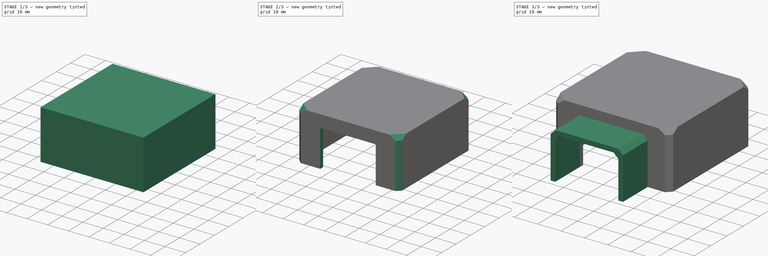
[diagram: build sequence overview — one tinted view per stage of 3, left to right]
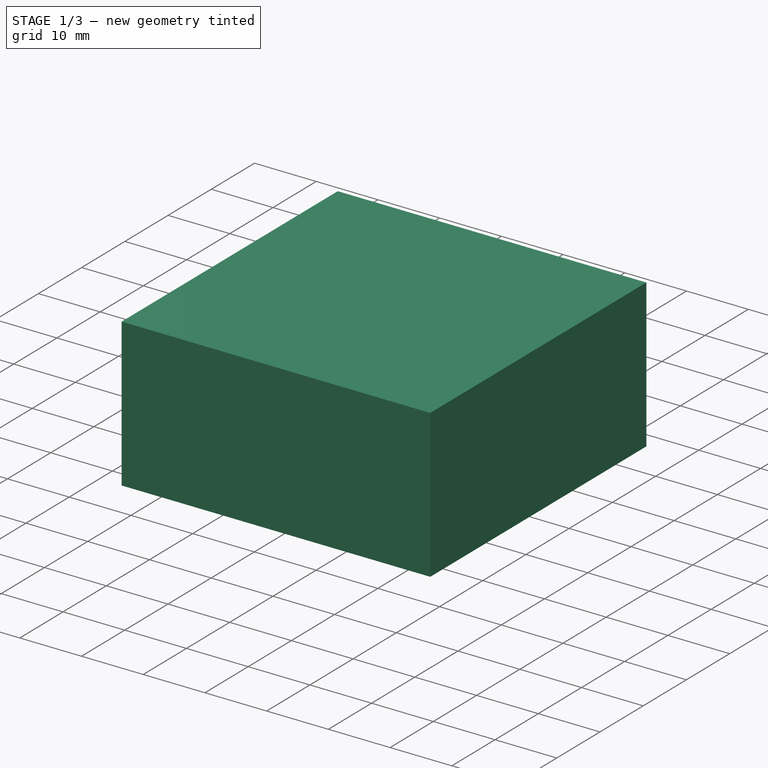
[diagram: stage 1 of 3 — iso view after this stage's code; geometry added in this stage tinted green]
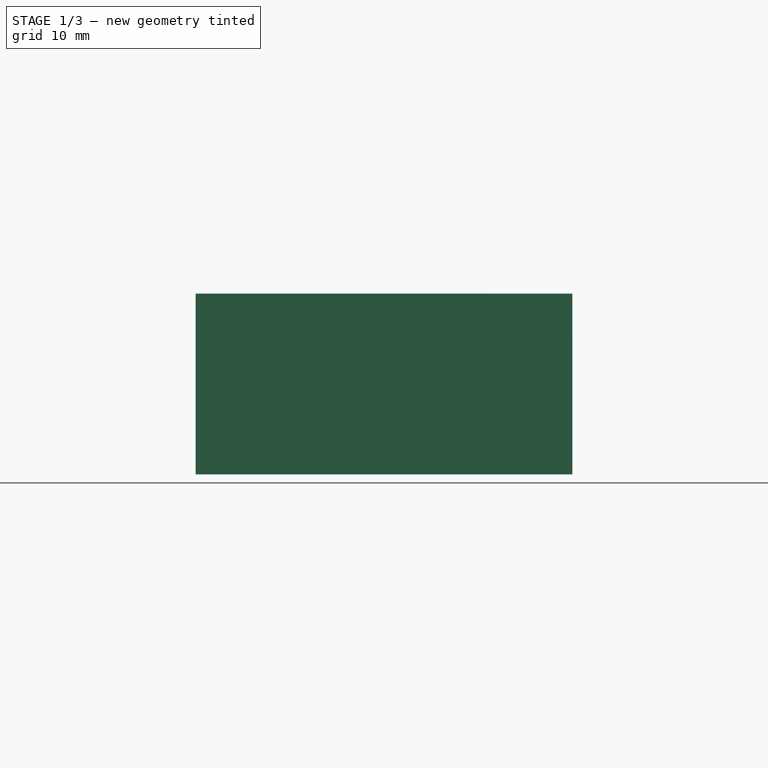
[diagram: stage 1 of 3 — front view after this stage's code; geometry added in this stage tinted green]
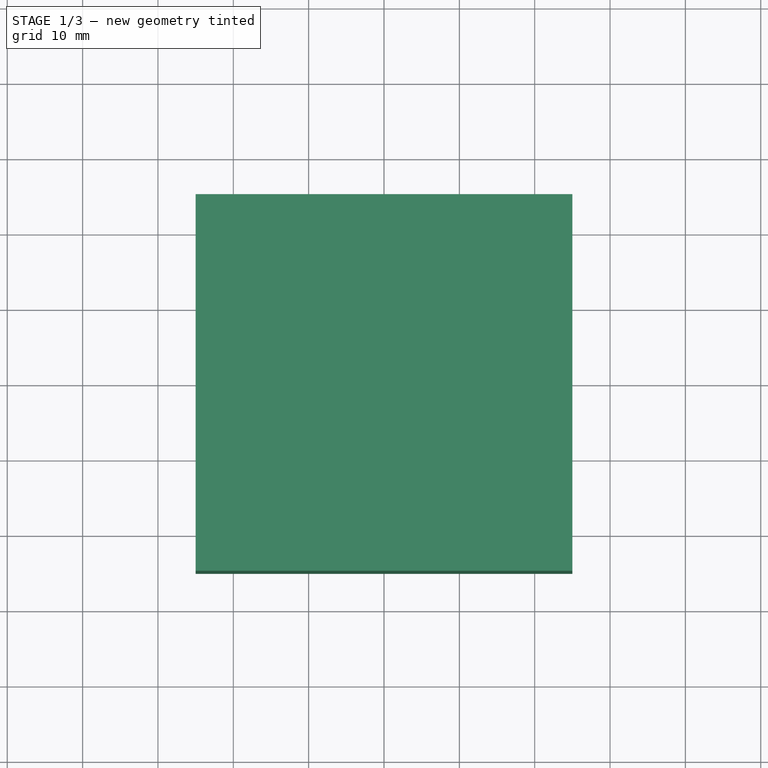
[diagram: stage 1 of 3 — top view after this stage's code; geometry added in this stage tinted green]
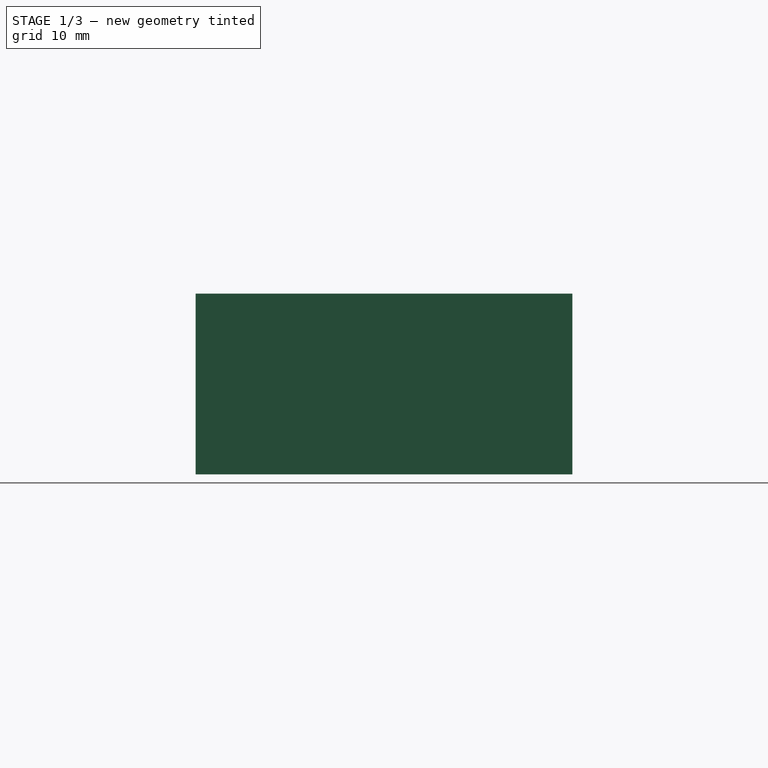
[diagram: stage 1 of 3 — right view after this stage's code; geometry added in this stage tinted green]
FCSTD DOCUMENT  (FreeCAD 0.18R16161 (Git))
Label: tuya-smart-switch-cover
License: All rights reserved
LicenseURL: http://en.wikipedia.org/wiki/All_rights_reserved
objects: Sketcher::SketchObject×4, PartDesign::Pad×3, PartDesign::Chamfer×3, PartDesign::Pocket×1, Spreadsheet::Sheet×1, PartDesign::Body×1
note: 16 computed .brp shape members not serialized (recipe doc carries the construction recipe); baked Part::Feature solids carry a one-line shape summary decoded from their .brp

FEATURE [Sketcher::SketchObject] Sketch
  MapMode = 5
  Support = -> [XY_Plane]
  expr: Constraints[19] = Parameters.SwitchHeight + 4mm
  expr: Constraints[18] = Parameters.SwitchWidth + 4mm
  expr: Constraints[6] = Parameters.SwitchWidth
  expr: Constraints[7] = Parameters.SwitchHeight
  sketch-geometry (8):
    g0: LineSegment StartX=-23 StartY=23 StartZ=0 EndX=23 EndY=23 EndZ=0
    g1: LineSegment StartX=23 StartY=23 StartZ=0 EndX=23 EndY=-23 EndZ=0
    g2: LineSegment StartX=23 StartY=-23 StartZ=0 EndX=-23 EndY=-23 EndZ=0
    g3: LineSegment StartX=-23 StartY=-23 StartZ=0 EndX=-23 EndY=23 EndZ=0
    g4: LineSegment StartX=-25 StartY=25 StartZ=0 EndX=25 EndY=25 EndZ=0
    g5: LineSegment StartX=25 StartY=25 StartZ=0 EndX=25 EndY=-25 EndZ=0
    g6: LineSegment StartX=25 StartY=-25 StartZ=0 EndX=-25 EndY=-25 EndZ=0
    g7: LineSegment StartX=-25 StartY=-25 StartZ=0 EndX=-25 EndY=25 EndZ=0
  constraints (20):
    c: Coincident(g0,g1)
    c: Coincident(g1,g2)
    c: Coincident(g2,g3)
    c: Coincident(g3,g0)
    c: Horizontal(g2)
    c: Vertical(g3)
    c: DistanceX(g0,g0) = 46
    c: DistanceY(g2,g0) = 46
    c: Symmetric(g0,g0,g-2)
    c: Symmetric(g0,g1,g-1)
    c: Coincident(g4,g5)
    c: Coincident(g5,g6)
    c: Coincident(g6,g7)
    c: Coincident(g7,g4)
    c: Horizontal(g6)
    c: Vertical(g7)
    c: Symmetric(g4,g4,g-2)
    c: Symmetric(g4,g5,g-1)
    c: DistanceX(g4,g4) = 50
    c: DistanceY(g5,g5) = 50
FEATURE [PartDesign::Pad] Pad
  Length = 20
  Length2 = 100
  Profile = -> Sketch
  Type = 0
FEATURE [Sketcher::SketchObject] Sketch001
  MapMode = 5
  Placement = pos=(0,0,20) rot=(0,0,1;0rad)
  Support = -> [Pad]
  expr: Constraints[8] = Parameters.SwitchHeight + 4mm
  expr: Constraints[9] = Parameters.SwitchWidth + 4mm
  sketch-geometry (4):
    g0: LineSegment StartX=-25 StartY=25 StartZ=0 EndX=25 EndY=25 EndZ=0
    g1: LineSegment StartX=25 StartY=25 StartZ=0 EndX=25 EndY=-25 EndZ=0
    g2: LineSegment StartX=25 StartY=-25 StartZ=0 EndX=-25 EndY=-25 EndZ=0
    g3: LineSegment StartX=-25 StartY=-25 StartZ=0 EndX=-25 EndY=25 EndZ=0
  constraints (10):
    c: Coincident(g0,g1)
    c: Coincident(g1,g2)
    c: Coincident(g2,g3)
    c: Coincident(g3,g0)
    c: Horizontal(g2)
    c: Vertical(g3)
    c: Symmetric(g0,g0,g-2)
    c: Symmetric(g1,g0,g-1)
    c: DistanceY(g1,g1) = 50
    c: DistanceX(g0,g0) = 50
FEATURE [PartDesign::Pad] Pad001
  BaseFeature = -> Pad
  Length = 4
  Length2 = 100
  Profile = -> Sketch001
  Type = 0
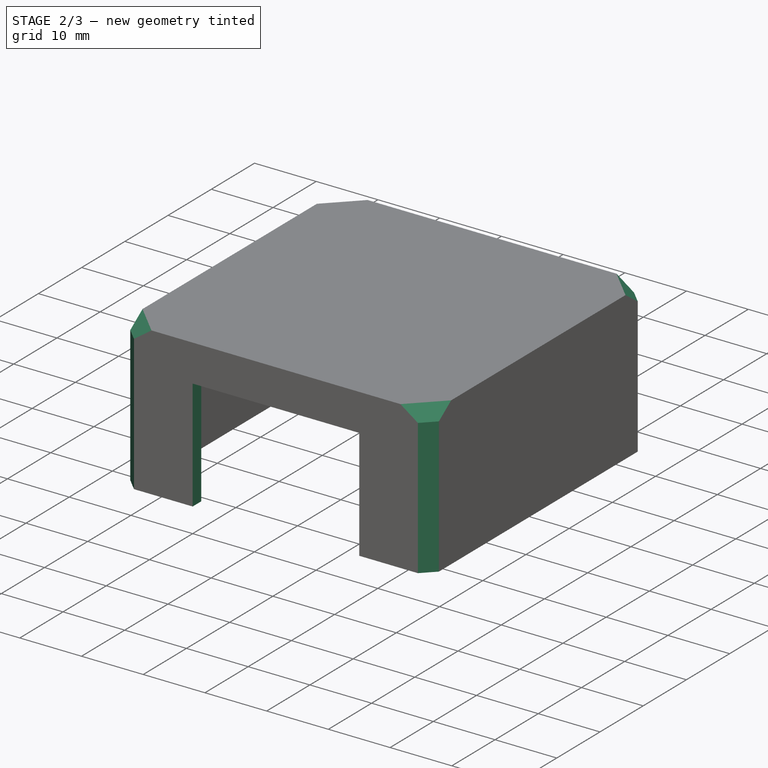
[diagram: stage 2 of 3 — iso view after this stage's code; geometry added in this stage tinted green]
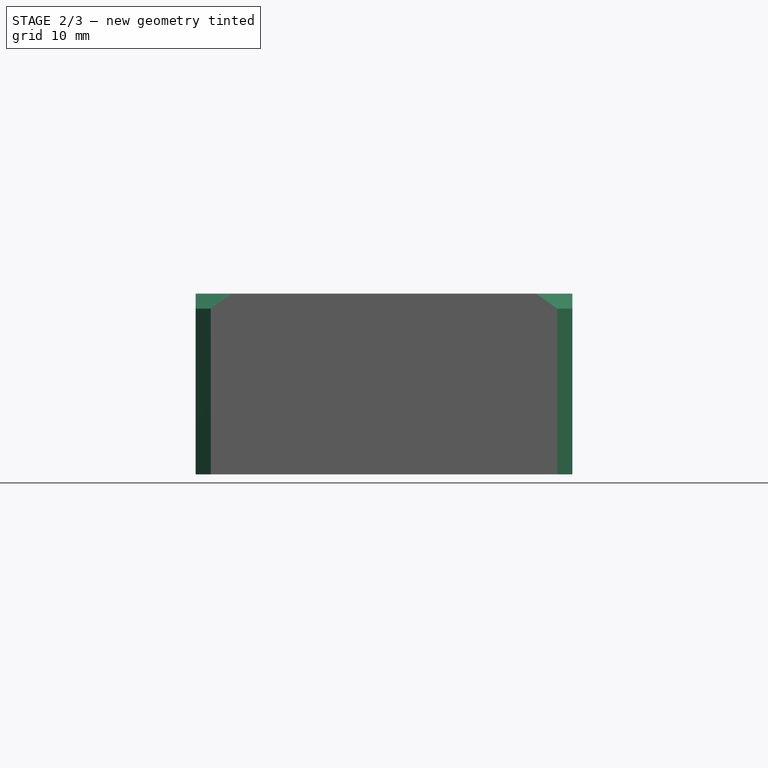
[diagram: stage 2 of 3 — front view after this stage's code; geometry added in this stage tinted green]
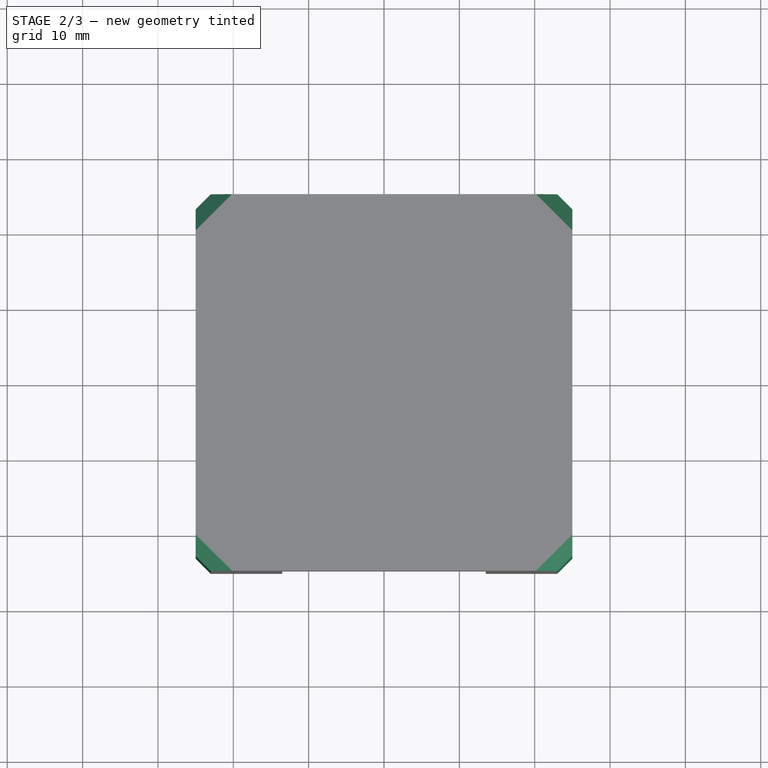
[diagram: stage 2 of 3 — top view after this stage's code; geometry added in this stage tinted green]
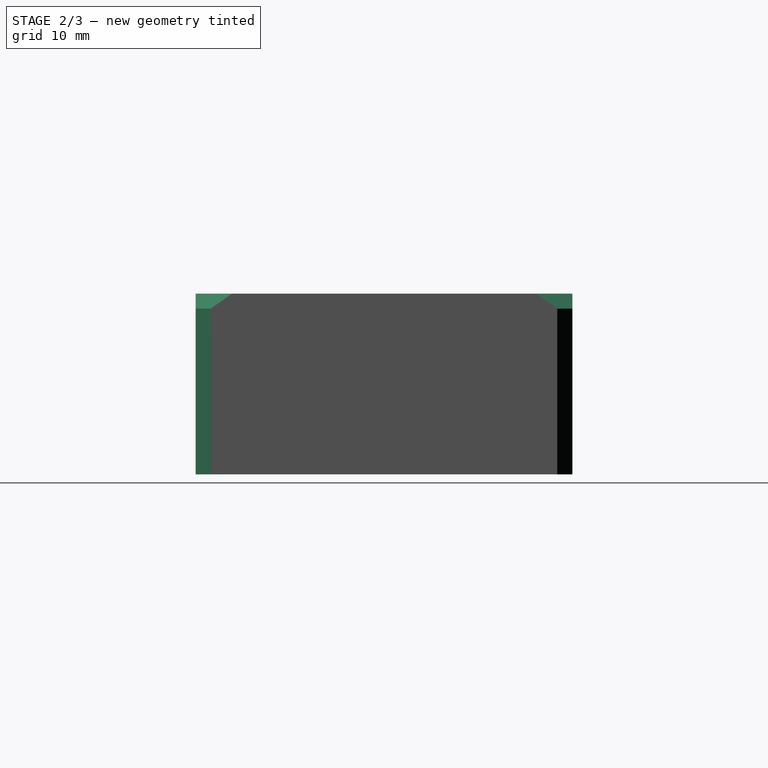
[diagram: stage 2 of 3 — right view after this stage's code; geometry added in this stage tinted green]
FEATURE [Sketcher::SketchObject] Sketch002
  MapMode = 5
  Placement = pos=(0,-25,0) rot=(1,0,0;1.5708rad)
  Support = -> [Pad001]
  expr: Constraints[7] = Parameters.OpeningWidth
  expr: Constraints[9] = Parameters.OpeningHeight
  sketch-geometry (4):
    g0: LineSegment StartX=-13.5 StartY=18 StartZ=0 EndX=13.5 EndY=18 EndZ=0
    g1: LineSegment StartX=13.5 StartY=18 StartZ=0 EndX=13.5 EndY=0 EndZ=0
    g2: LineSegment StartX=13.5 StartY=0 StartZ=0 EndX=-13.5 EndY=0 EndZ=0
    g3: LineSegment StartX=-13.5 StartY=0 StartZ=0 EndX=-13.5 EndY=18 EndZ=0
  constraints (11):
    c: Coincident(g0,g1)
    c: Coincident(g1,g2)
    c: Coincident(g2,g3)
    c: Coincident(g3,g0)
    c: Horizontal(g2)
    c: Vertical(g1)
    c: Vertical(g3)
    c: DistanceX(g0,g0) = 27
    c: Symmetric(g0,g0,g-2)
    c: DistanceY(g3,g3) = 18
    c: PointOnObject(g-1,g2)
FEATURE [PartDesign::Pocket] Pocket
  BaseFeature = -> Pad001
  Length = 5
  Length2 = 100
  Profile = -> Sketch002
  Type = 0
FEATURE [PartDesign::Chamfer] Chamfer
  Base = -> Pocket [Edge27,Edge5,Edge8,Edge29,Edge2,Edge21,Edge1,Edge20,Edge38,Edge37,Edge40,Edge35]
  BaseFeature = -> Pocket
  Size = 2
FEATURE [PartDesign::Chamfer] Chamfer001
  Base = -> Chamfer [Edge71,Edge70,Edge67,Edge65]
  BaseFeature = -> Chamfer
  Size = 2
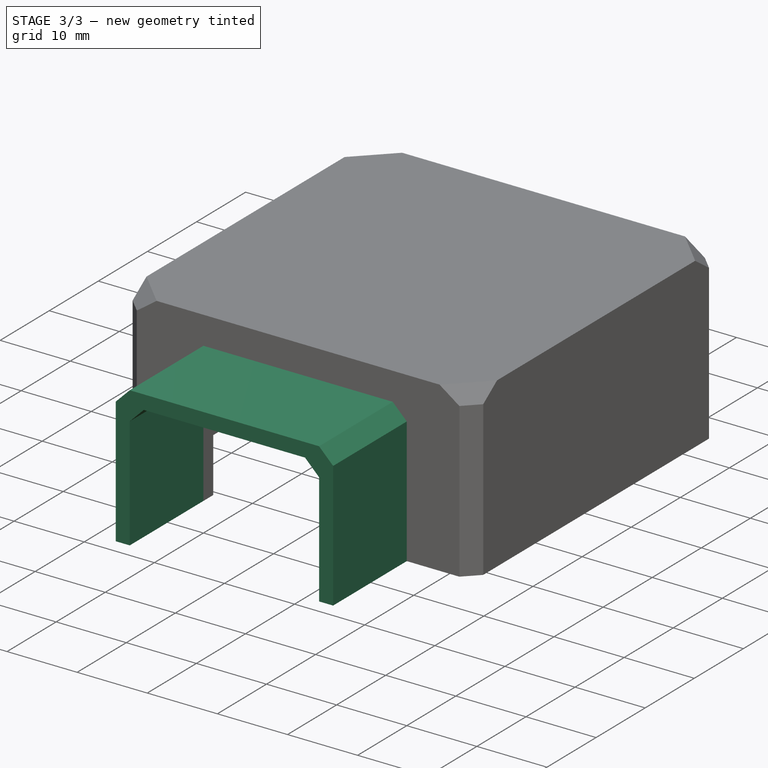
[diagram: stage 3 of 3 — iso view after this stage's code; geometry added in this stage tinted green]
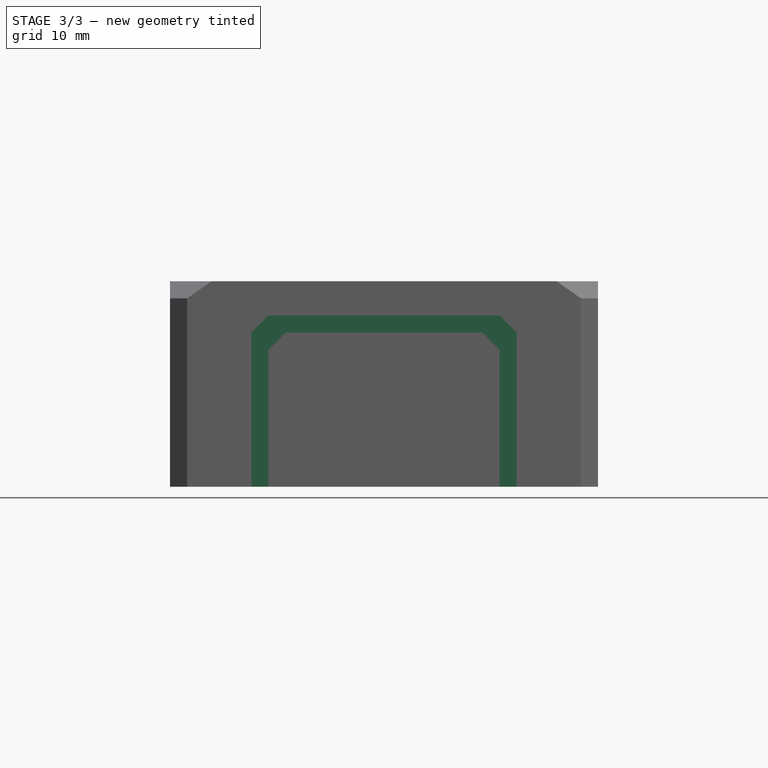
[diagram: stage 3 of 3 — front view after this stage's code; geometry added in this stage tinted green]
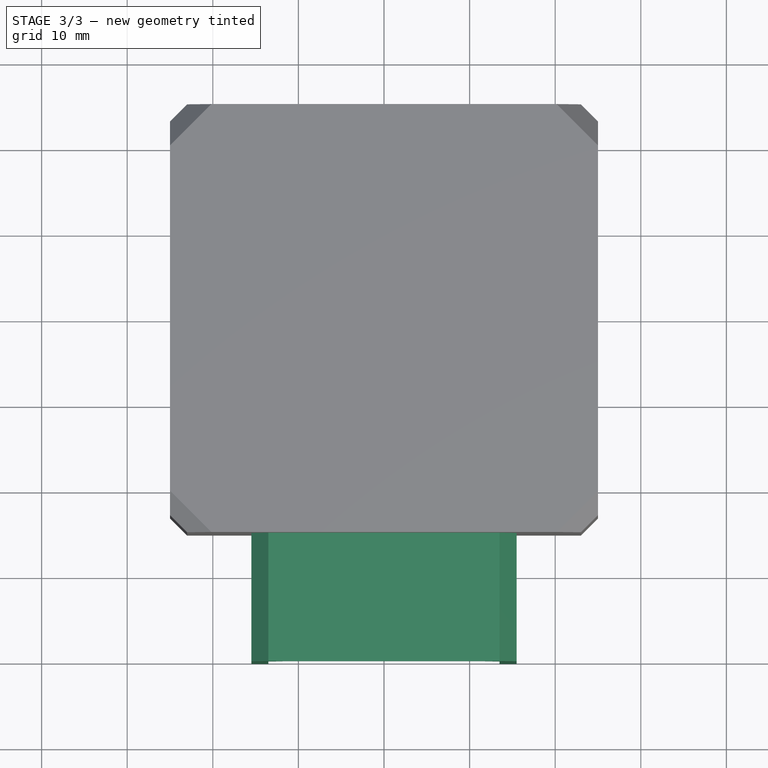
[diagram: stage 3 of 3 — top view after this stage's code; geometry added in this stage tinted green]
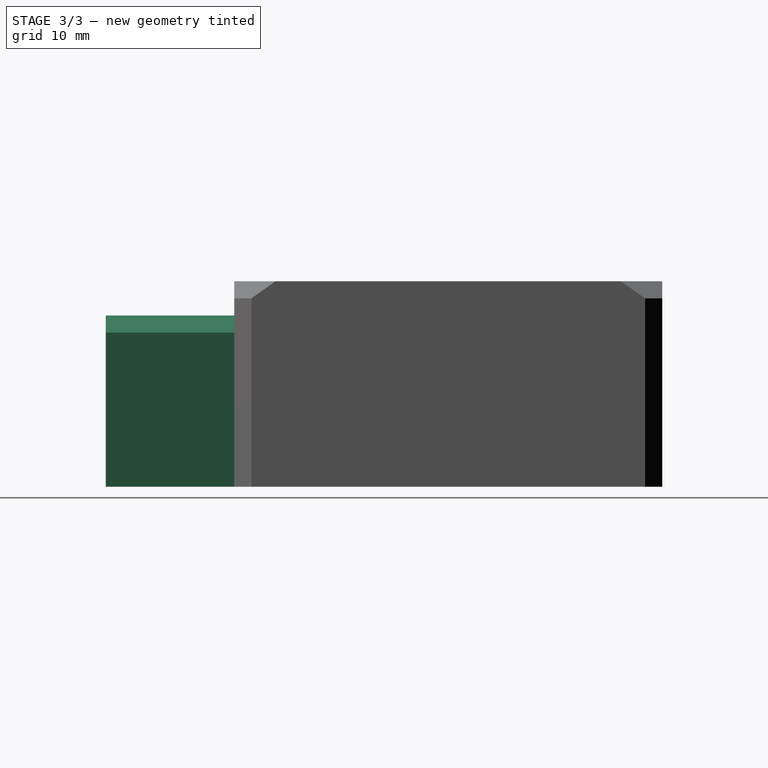
[diagram: stage 3 of 3 — right view after this stage's code; geometry added in this stage tinted green]
FEATURE [Sketcher::SketchObject] Sketch003
  MapMode = 5
  Placement = pos=(0,-25,0) rot=(1,0,0;1.5708rad)
  Support = -> [Chamfer001]
  expr: Constraints[20] = Parameters.OpeningWidth
  expr: Constraints[15] = Parameters.OpeningLidWidth
  expr: Constraints[17] = Parameters.OpeningLidWidth
  expr: Constraints[21] = Parameters.OpeningHeight
  expr: Constraints[16] = Parameters.OpeningLidWidth
  sketch-geometry (8):
    g0: LineSegment StartX=-13.5 StartY=18 StartZ=0 EndX=-13.5 EndY=0 EndZ=0
    g1: LineSegment StartX=-13.5 StartY=18 StartZ=0 EndX=13.5 EndY=18 EndZ=0
    g2: LineSegment StartX=13.5 StartY=18 StartZ=0 EndX=13.5 EndY=0 EndZ=0
    g3: LineSegment StartX=13.5 StartY=0 StartZ=0 EndX=15.5 EndY=0 EndZ=0
    g4: LineSegment StartX=15.5 StartY=0 StartZ=0 EndX=15.5 EndY=20 EndZ=0
    g5: LineSegment StartX=15.5 StartY=20 StartZ=0 EndX=-15.5 EndY=20 EndZ=0
    g6: LineSegment StartX=-15.5 StartY=0 StartZ=0 EndX=-13.5 EndY=0 EndZ=0
    g7: LineSegment StartX=-15.5 StartY=20 StartZ=0 EndX=-15.5 EndY=0 EndZ=0
  constraints (23):
    c: Coincident(g1,g0)
    c: Horizontal(g1)
    c: Coincident(g2,g1)
    c: Vertical(g2)
    c: Coincident(g3,g2)
    c: Horizontal(g3)
    c: Coincident(g6,g0)
    c: Horizontal(g6)
    c: Coincident(g7,g5)
    c: Coincident(g7,g6)
    c: Vertical(g7)
    c: Coincident(g5,g4)
    c: Vertical(g4)
    c: Coincident(g3,g4)
    c: Vertical(g0)
    c: DistanceX(g6,g0) = 2
    c: DistanceX(g2,g3) = 2
    c: DistanceY(g1,g4) = 2
    c: PointOnObject(g2,g-1)
    c: PointOnObject(g0,g-1)
    c: DistanceX(g1,g1) = 27
    c: DistanceY(g0,g0) = 18
    c: Symmetric(g5,g4,g-2)
FEATURE [Spreadsheet::Sheet] Spreadsheet  label="Parameters"
  cells = A1=SwitchWidth; B1(SwitchWidth)==46mm; A2=SwitchHeight; B2(SwitchHeight)==46mm; A3=OpeningHeight; B3(OpeningHeight)==18mm; A4=OpeningWidth; B4(OpeningWidth)==27mm; A5=OpeningLidWidth; B5(OpeningLidWidth)==2mm
FEATURE [PartDesign::Pad] Pad002
  BaseFeature = -> Chamfer001
  Length = 15
  Length2 = 100
  Profile = -> Sketch003
  Type = 0
FEATURE [PartDesign::Chamfer] Chamfer002
  Base = -> Pad002 [Edge110,Edge104,Edge100,Edge101]
  BaseFeature = -> Pad002
  Size = 2
FEATURE [PartDesign::Body] Body
  Group = -> [Sketch,Pad,Sketch001,Pad001,Sketch002,Pocket,Chamfer,Chamfer001,Sketch003,Pad002,Chamfer002]
  Origin = -> Origin
  Tip = -> Chamfer002
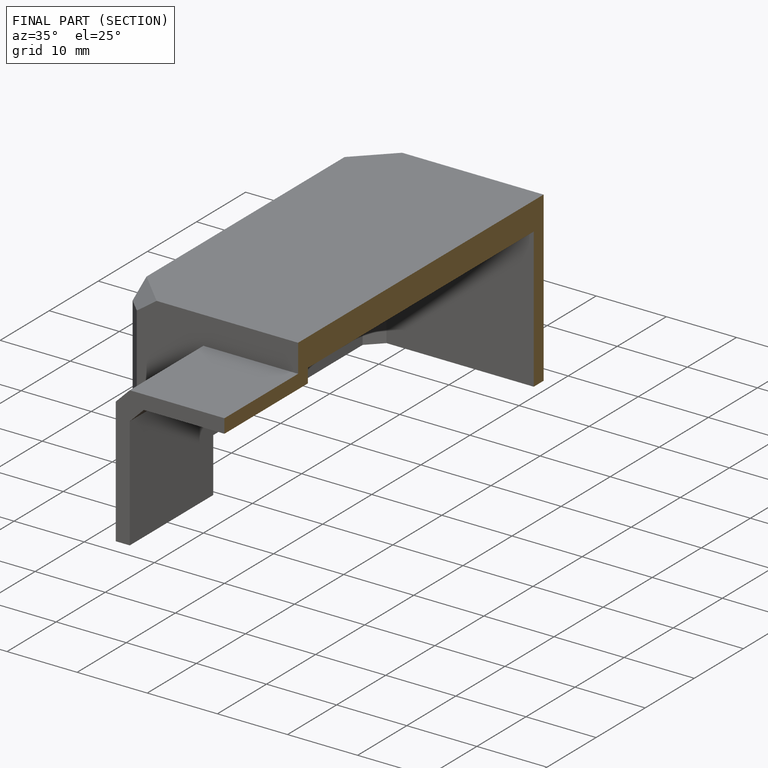
[diagram: finished part — half-section view (interior)]
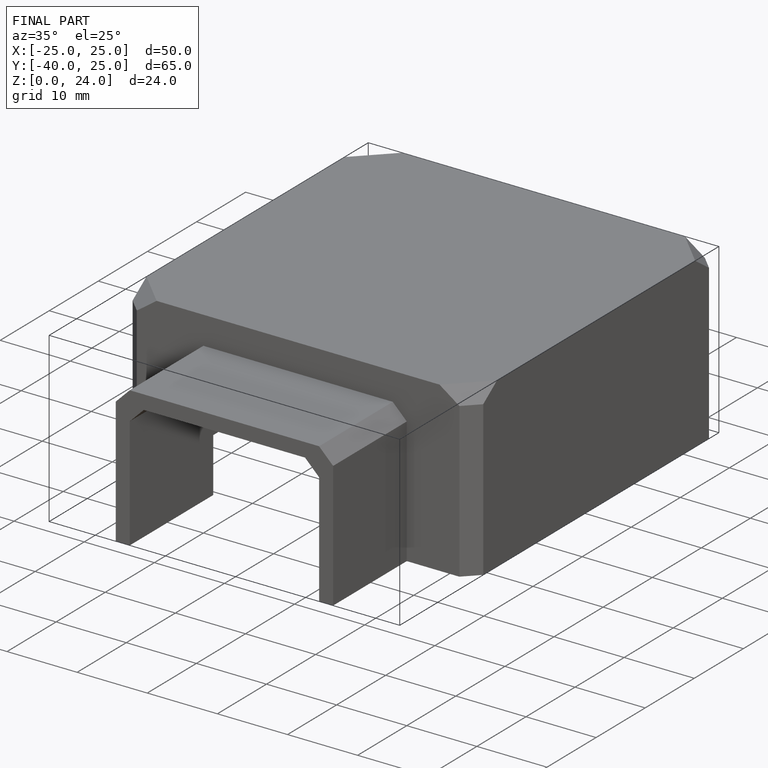
[diagram: finished part — iso view with bounding-box wireframe]
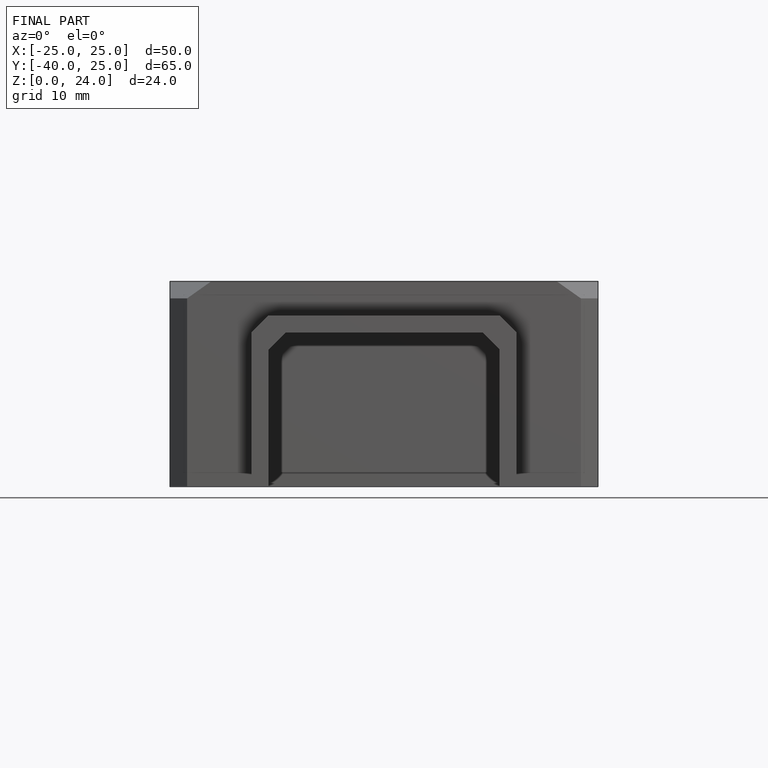
[diagram: finished part — front view with bounding-box wireframe]
